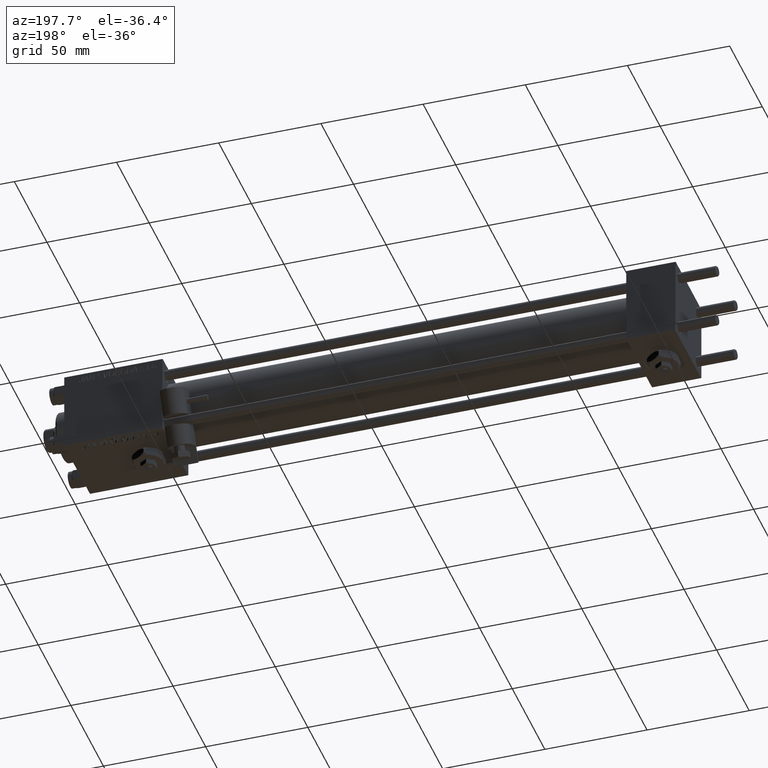
[diagram: clean part render]
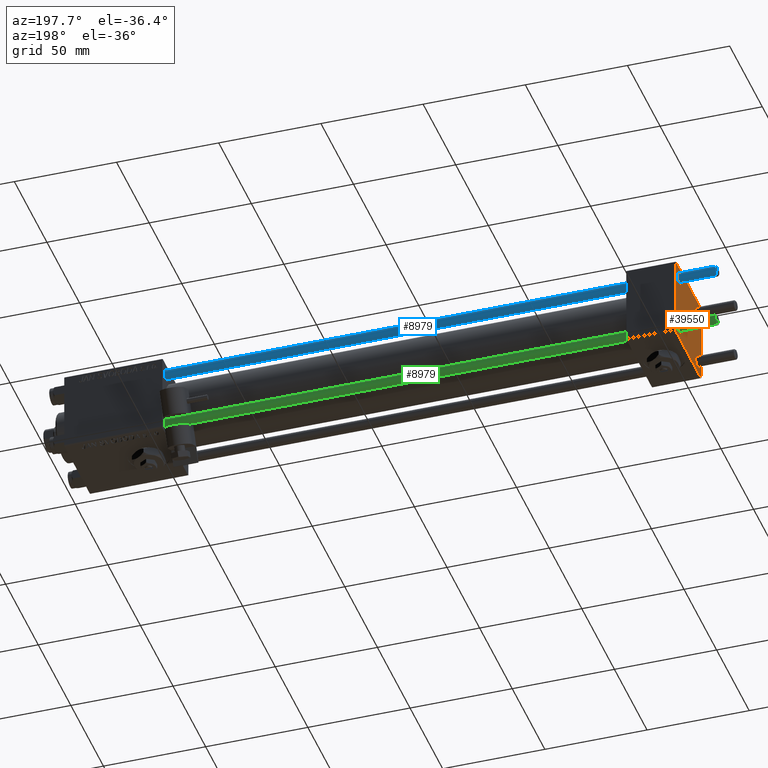
[diagram: same view with three faces highlighted in distinct colors, each labeled with its STEP entity id]
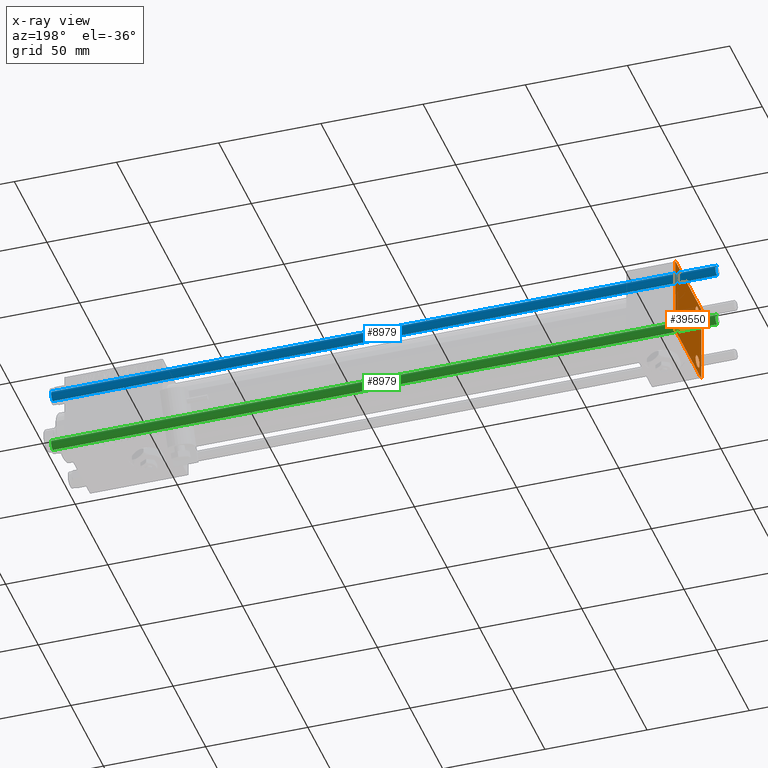
[diagram: x-ray of the same camera — body ghosted, the three highlighted faces saturated]
A machine part, auxiliary view with three faces highlighted in distinct colors.
The next image is the same camera in x-ray (body ghosted, the three faces saturated) — at least one of them is partly hidden behind the body in this view.
Their STEP definitions:

[orange] entity #39550 — the highlighted planar face has unit normal (-1, 0, 0).
#5 = VERTEX_POINT ( 'NONE', #51979 ) ;
#264 = CARTESIAN_POINT ( 'NONE',  ( 0.000000000000000000, -20.00000000000000355, 19.49999999999998224 ) ) ;
#1296 = DIRECTION ( 'NONE',  ( -0.000000000000000000, 0.000000000000000000, 1.000000000000000000 ) ) ;
#1893 = EDGE_CURVE ( 'NONE', #13429, #12551, #21373, .T. ) ;
#2311 = CARTESIAN_POINT ( 'NONE',  ( 0.000000000000000000, -14.14999999999999503, -17.15000000000000568 ) ) ;
#2686 = CARTESIAN_POINT ( 'NONE',  ( 0.000000000000000000, 14.14999999999999858, 17.15000000000000568 ) ) ;
#2732 = CIRCLE ( 'NONE', #32572, 3.000000000000000888 ) ;
#3047 = EDGE_LOOP ( 'NONE', ( #10812, #17126 ) ) ;
#4506 = FACE_BOUND ( 'NONE', #20293, .T. ) ;
#4575 = DIRECTION ( 'NONE',  ( 0.000000000000000000, 0.000000000000000000, 1.000000000000000000 ) ) ;
#5094 = DIRECTION ( 'NONE',  ( 1.000000000000000000, 0.000000000000000000, 0.000000000000000000 ) ) ;
#5096 = EDGE_CURVE ( 'NONE', #22562, #13429, #49957, .T. ) ;
#5564 = EDGE_LOOP ( 'NONE', ( #21692, #30108, #19060, #39436, #37692, #7575, #50798, #44128 ) ) ;
#6077 = CIRCLE ( 'NONE', #30835, 3.000000000000000888 ) ;
#6235 = CIRCLE ( 'NONE', #36086, 3.000000000000000888 ) ;
#6367 = VERTEX_POINT ( 'NONE', #32341 ) ;
#6432 = DIRECTION ( 'NONE',  ( 1.000000000000000000, 0.000000000000000000, 0.000000000000000000 ) ) ;
#6481 = CARTESIAN_POINT ( 'NONE',  ( 0.000000000000000000, -14.14999999999999503, -11.15000000000000391 ) ) ;
#7163 = DIRECTION ( 'NONE',  ( 1.000000000000000000, 0.000000000000000000, 0.000000000000000000 ) ) ;
#7575 = ORIENTED_EDGE ( 'NONE', *, *, #26172, .T. ) ;
#7672 = VERTEX_POINT ( 'NONE', #27441 ) ;
#7816 = CARTESIAN_POINT ( 'NONE',  ( 0.000000000000000000, 14.14999999999999858, 14.15000000000000036 ) ) ;
#7922 = CIRCLE ( 'NONE', #39510, 3.000000000000000888 ) ;
#7960 = AXIS2_PLACEMENT_3D ( 'NONE', #14940, #38983, #20764 ) ;
#8371 = CARTESIAN_POINT ( 'NONE',  ( 0.000000000000000000, 14.14999999999999858, -11.15000000000000036 ) ) ;
#8393 = CARTESIAN_POINT ( 'NONE',  ( -0.000000000000000000, 19.74999999999986855, -19.75000000000014211 ) ) ;
#8828 = CARTESIAN_POINT ( 'NONE',  ( -0.000000000000000000, 19.75000000000013500, 19.74999999999986144 ) ) ;
#8917 = AXIS2_PLACEMENT_3D ( 'NONE', #17315, #49630, #1296 ) ;
#9898 = DIRECTION ( 'NONE',  ( 0.000000000000000000, 0.000000000000000000, -1.000000000000000000 ) ) ;
#10060 = DIRECTION ( 'NONE',  ( 0.000000000000000000, -1.000000000000000000, 1.734723475976807094E-16 ) ) ;
#10812 = ORIENTED_EDGE ( 'NONE', *, *, #28127, .T. ) ;
#10887 = DIRECTION ( 'NONE',  ( 1.000000000000000000, 0.000000000000000000, 0.000000000000000000 ) ) ;
#10978 = VERTEX_POINT ( 'NONE', #45499 ) ;
#11130 = EDGE_CURVE ( 'NONE', #35879, #36719, #30025, .T. ) ;
#11830 = DIRECTION ( 'NONE',  ( 0.000000000000000000, -0.7071067811865401342, 0.7071067811865549002 ) ) ;
#12551 = VERTEX_POINT ( 'NONE', #36302 ) ;
#12848 = DIRECTION ( 'NONE',  ( 1.000000000000000000, 0.000000000000000000, 0.000000000000000000 ) ) ;
#13429 = VERTEX_POINT ( 'NONE', #23250 ) ;
#13466 = VERTEX_POINT ( 'NONE', #2686 ) ;
#13572 = FACE_BOUND ( 'NONE', #44039, .T. ) ;
#14445 = DIRECTION ( 'NONE',  ( 0.000000000000000000, 0.000000000000000000, 1.000000000000000000 ) ) ;
#14778 = CIRCLE ( 'NONE', #33541, 3.000000000000000888 ) ;
#14940 = CARTESIAN_POINT ( 'NONE',  ( 0.000000000000000000, -14.14999999999999503, -14.15000000000000391 ) ) ;
#15272 = CARTESIAN_POINT ( 'NONE',  ( 0.000000000000000000, -14.14999999999999503, 11.15000000000000213 ) ) ;
#15881 = LINE ( 'NONE', #8393, #33150 ) ;
#16088 = DIRECTION ( 'NONE',  ( 1.000000000000000000, 0.000000000000000000, 0.000000000000000000 ) ) ;
#16409 = DIRECTION ( 'NONE',  ( -0.000000000000000000, -0.7071067811865524577, -0.7071067811865426878 ) ) ;
#16539 = CIRCLE ( 'NONE', #20803, 3.000000000000000888 ) ;
#16576 = DIRECTION ( 'NONE',  ( 0.000000000000000000, -1.000000000000000000, -2.602085213965210149E-16 ) ) ;
#16956 = CARTESIAN_POINT ( 'NONE',  ( 0.000000000000000000, 19.50000000000000000, 20.00000000000000000 ) ) ;
#17126 = ORIENTED_EDGE ( 'NONE', *, *, #31697, .T. ) ;
#17220 = ORIENTED_EDGE ( 'NONE', *, *, #45179, .T. ) ;
#17315 = CARTESIAN_POINT ( 'NONE',  ( 0.000000000000000000, 0.000000000000000000, 0.000000000000000000 ) ) ;
#17634 = EDGE_CURVE ( 'NONE', #12551, #5, #15881, .T. ) ;
#17844 = EDGE_LOOP ( 'NONE', ( #38381, #38617 ) ) ;
#18065 = LINE ( 'NONE', #46635, #26816 ) ;
#18632 = CARTESIAN_POINT ( 'NONE',  ( 0.000000000000000000, -14.14999999999999503, 14.15000000000000391 ) ) ;
#19060 = ORIENTED_EDGE ( 'NONE', *, *, #38415, .T. ) ;
#19598 = AXIS2_PLACEMENT_3D ( 'NONE', #31014, #6432, #14445 ) ;
#20293 = EDGE_LOOP ( 'NONE', ( #31375, #26559 ) ) ;
#20330 = VECTOR ( 'NONE', #38200, 999.9999999999998863 ) ;
#20577 = CARTESIAN_POINT ( 'NONE',  ( 0.000000000000000000, 14.14999999999999858, 14.15000000000000036 ) ) ;
#20764 = DIRECTION ( 'NONE',  ( 0.000000000000000000, 0.000000000000000000, 1.000000000000000000 ) ) ;
#20803 = AXIS2_PLACEMENT_3D ( 'NONE', #51776, #7163, #23462 ) ;
#20967 = EDGE_CURVE ( 'NONE', #35082, #29987, #21197, .T. ) ;
#21197 = CIRCLE ( 'NONE', #19598, 3.000000000000000888 ) ;
#21371 = DIRECTION ( 'NONE',  ( 0.000000000000000000, 0.000000000000000000, 1.000000000000000000 ) ) ;
#21373 = LINE ( 'NONE', #42463, #32164 ) ;
#21692 = ORIENTED_EDGE ( 'NONE', *, *, #1893, .T. ) ;
#22562 = VERTEX_POINT ( 'NONE', #16956 ) ;
#23250 = CARTESIAN_POINT ( 'NONE',  ( 0.000000000000000000, 20.00000000000000000, 19.49999999999999289 ) ) ;
#23462 = DIRECTION ( 'NONE',  ( 0.000000000000000000, 0.000000000000000000, 1.000000000000000000 ) ) ;
#24114 = DIRECTION ( 'NONE',  ( 0.000000000000000000, 0.000000000000000000, 1.000000000000000000 ) ) ;
#25412 = CARTESIAN_POINT ( 'NONE',  ( 0.000000000000000000, -20.00000000000000000, -19.49999999999999645 ) ) ;
#25872 = FACE_OUTER_BOUND ( 'NONE', #5564, .T. ) ;
#26172 = EDGE_CURVE ( 'NONE', #35879, #31522, #35397, .T. ) ;
#26338 = VERTEX_POINT ( 'NONE', #8371 ) ;
#26559 = ORIENTED_EDGE ( 'NONE', *, *, #20967, .T. ) ;
#26816 = VECTOR ( 'NONE', #10060, 1000.000000000000000 ) ;
#27441 = CARTESIAN_POINT ( 'NONE',  ( 0.000000000000000000, -19.50000000000000711, -20.00000000000000000 ) ) ;
#27605 = CARTESIAN_POINT ( 'NONE',  ( 0.000000000000000000, -19.49999999999999289, 19.99999999999998934 ) ) ;
#28127 = EDGE_CURVE ( 'NONE', #13466, #52156, #6077, .T. ) ;
#28383 = LINE ( 'NONE', #45188, #48879 ) ;
#28408 = DIRECTION ( 'NONE',  ( -0.000000000000000000, 0.7071067811865500152, 0.7071067811865451302 ) ) ;
#29987 = VERTEX_POINT ( 'NONE', #6481 ) ;
#30025 = LINE ( 'NONE', #39086, #35903 ) ;
#30108 = ORIENTED_EDGE ( 'NONE', *, *, #17634, .T. ) ;
#30835 = AXIS2_PLACEMENT_3D ( 'NONE', #20577, #5094, #21371 ) ;
#31014 = CARTESIAN_POINT ( 'NONE',  ( 0.000000000000000000, -14.14999999999999503, -14.15000000000000391 ) ) ;
#31375 = ORIENTED_EDGE ( 'NONE', *, *, #33077, .T. ) ;
#31522 = VERTEX_POINT ( 'NONE', #27605 ) ;
#31697 = EDGE_CURVE ( 'NONE', #52156, #13466, #7922, .T. ) ;
#31737 = EDGE_CURVE ( 'NONE', #7672, #36719, #28383, .T. ) ;
#32164 = VECTOR ( 'NONE', #9898, 1000.000000000000000 ) ;
#32341 = CARTESIAN_POINT ( 'NONE',  ( 0.000000000000000000, 14.14999999999999858, -17.15000000000000213 ) ) ;
#32572 = AXIS2_PLACEMENT_3D ( 'NONE', #18632, #10887, #41949 ) ;
#32684 = CARTESIAN_POINT ( 'NONE',  ( 0.000000000000000000, 14.14999999999999858, 11.14999999999999858 ) ) ;
#33077 = EDGE_CURVE ( 'NONE', #29987, #35082, #48915, .T. ) ;
#33137 = CARTESIAN_POINT ( 'NONE',  ( 0.000000000000000000, 20.00000000000000000, 20.00000000000000000 ) ) ;
#33150 = VECTOR ( 'NONE', #16409, 1000.000000000000000 ) ;
#33541 = AXIS2_PLACEMENT_3D ( 'NONE', #45678, #12848, #4575 ) ;
#34296 = DIRECTION ( 'NONE',  ( 0.000000000000000000, 8.673617379884036705E-17, -1.000000000000000000 ) ) ;
#34400 = ORIENTED_EDGE ( 'NONE', *, *, #45290, .T. ) ;
#35082 = VERTEX_POINT ( 'NONE', #2311 ) ;
#35397 = LINE ( 'NONE', #40435, #47776 ) ;
#35879 = VERTEX_POINT ( 'NONE', #264 ) ;
#35903 = VECTOR ( 'NONE', #34296, 1000.000000000000000 ) ;
#36086 = AXIS2_PLACEMENT_3D ( 'NONE', #47464, #43711, #45936 ) ;
#36302 = CARTESIAN_POINT ( 'NONE',  ( 0.000000000000000000, 20.00000000000000000, -19.50000000000002132 ) ) ;
#36719 = VERTEX_POINT ( 'NONE', #25412 ) ;
#37692 = ORIENTED_EDGE ( 'NONE', *, *, #11130, .F. ) ;
#38133 = EDGE_CURVE ( 'NONE', #26338, #6367, #16539, .T. ) ;
#38200 = DIRECTION ( 'NONE',  ( 0.000000000000000000, 0.7071067811865425767, -0.7071067811865525687 ) ) ;
#38381 = ORIENTED_EDGE ( 'NONE', *, *, #38133, .T. ) ;
#38415 = EDGE_CURVE ( 'NONE', #5, #7672, #18065, .T. ) ;
#38617 = ORIENTED_EDGE ( 'NONE', *, *, #45251, .T. ) ;
#38983 = DIRECTION ( 'NONE',  ( 1.000000000000000000, 0.000000000000000000, 0.000000000000000000 ) ) ;
#39086 = CARTESIAN_POINT ( 'NONE',  ( 0.000000000000000000, -20.00000000000000355, 19.99999999999998934 ) ) ;
#39436 = ORIENTED_EDGE ( 'NONE', *, *, #31737, .T. ) ;
#39510 = AXIS2_PLACEMENT_3D ( 'NONE', #7816, #16088, #24114 ) ;
#39550 = ADVANCED_FACE ( 'NONE', ( #13572, #4506, #50428, #45874, #25872 ), #49903, .T. ) ;
#40435 = CARTESIAN_POINT ( 'NONE',  ( -0.000000000000000000, -19.74999999999992539, 19.75000000000006395 ) ) ;
#41949 = DIRECTION ( 'NONE',  ( 0.000000000000000000, 0.000000000000000000, 1.000000000000000000 ) ) ;
#42463 = CARTESIAN_POINT ( 'NONE',  ( 0.000000000000000000, 20.00000000000000000, 20.00000000000000000 ) ) ;
#43711 = DIRECTION ( 'NONE',  ( 1.000000000000000000, 0.000000000000000000, 0.000000000000000000 ) ) ;
#44039 = EDGE_LOOP ( 'NONE', ( #17220, #34400 ) ) ;
#44128 = ORIENTED_EDGE ( 'NONE', *, *, #5096, .T. ) ;
#45179 = EDGE_CURVE ( 'NONE', #10978, #52309, #14778, .T. ) ;
#45188 = CARTESIAN_POINT ( 'NONE',  ( 0.000000000000000000, -19.75000000000020961, -19.74999999999979394 ) ) ;
#45251 = EDGE_CURVE ( 'NONE', #6367, #26338, #6235, .T. ) ;
#45290 = EDGE_CURVE ( 'NONE', #52309, #10978, #2732, .T. ) ;
#45441 = VECTOR ( 'NONE', #16576, 1000.000000000000000 ) ;
#45499 = CARTESIAN_POINT ( 'NONE',  ( 0.000000000000000000, -14.14999999999999503, 17.15000000000000568 ) ) ;
#45678 = CARTESIAN_POINT ( 'NONE',  ( 0.000000000000000000, -14.14999999999999503, 14.15000000000000391 ) ) ;
#45874 = FACE_BOUND ( 'NONE', #3047, .T. ) ;
#45936 = DIRECTION ( 'NONE',  ( 0.000000000000000000, 0.000000000000000000, 1.000000000000000000 ) ) ;
#46635 = CARTESIAN_POINT ( 'NONE',  ( 0.000000000000000000, 20.00000000000000000, -20.00000000000000711 ) ) ;
#47464 = CARTESIAN_POINT ( 'NONE',  ( 0.000000000000000000, 14.14999999999999858, -14.15000000000000036 ) ) ;
#47776 = VECTOR ( 'NONE', #28408, 1000.000000000000114 ) ;
#48879 = VECTOR ( 'NONE', #11830, 1000.000000000000000 ) ;
#48915 = CIRCLE ( 'NONE', #7960, 3.000000000000000888 ) ;
#48928 = EDGE_CURVE ( 'NONE', #22562, #31522, #52644, .T. ) ;
#49630 = DIRECTION ( 'NONE',  ( -1.000000000000000000, 0.000000000000000000, -0.000000000000000000 ) ) ;
#49903 = PLANE ( 'NONE',  #8917 ) ;
#49957 = LINE ( 'NONE', #8828, #20330 ) ;
#50428 = FACE_BOUND ( 'NONE', #17844, .T. ) ;
#50798 = ORIENTED_EDGE ( 'NONE', *, *, #48928, .F. ) ;
#51776 = CARTESIAN_POINT ( 'NONE',  ( 0.000000000000000000, 14.14999999999999858, -14.15000000000000036 ) ) ;
#51979 = CARTESIAN_POINT ( 'NONE',  ( 0.000000000000000000, 19.50000000000000711, -20.00000000000000711 ) ) ;
#52156 = VERTEX_POINT ( 'NONE', #32684 ) ;
#52309 = VERTEX_POINT ( 'NONE', #15272 ) ;
#52644 = LINE ( 'NONE', #33137, #45441 ) ;

[blue] entity #8979 — the highlighted cylindrical surface (edge-blend (fillet) strip) has radius 2.5 mm, axis along (-1, -0, -0).
#1852 = EDGE_CURVE ( 'NONE', #48198, #29187, #5097, .T. ) ;
#2416 = DIRECTION ( 'NONE',  ( -0.000000000000000000, -0.000000000000000000, 1.000000000000000000 ) ) ;
#4828 = EDGE_LOOP ( 'NONE', ( #16886, #25578, #29317, #5146 ) ) ;
#5097 = LINE ( 'NONE', #37940, #44083 ) ;
#5146 = ORIENTED_EDGE ( 'NONE', *, *, #1852, .F. ) ;
#5625 = DIRECTION ( 'NONE',  ( -0.000000000000000000, -0.000000000000000000, -1.000000000000000000 ) ) ;
#6379 = LINE ( 'NONE', #34965, #42018 ) ;
#7096 = CIRCLE ( 'NONE', #8803, 2.500000000000000000 ) ;
#8803 = AXIS2_PLACEMENT_3D ( 'NONE', #31004, #2416, #51296 ) ;
#8979 = ADVANCED_FACE ( 'NONE', ( #17707 ), #16911, .T. ) ;
#9107 = CARTESIAN_POINT ( 'NONE',  ( 2.500000000000000000, 3.061616997868383141E-16, 325.5000000000000000 ) ) ;
#16886 = ORIENTED_EDGE ( 'NONE', *, *, #50492, .T. ) ;
#16911 = CYLINDRICAL_SURFACE ( 'NONE', #39265, 2.500000000000000000 ) ;
#17395 = CIRCLE ( 'NONE', #31062, 2.500000000000000000 ) ;
#17707 = FACE_OUTER_BOUND ( 'NONE', #4828, .T. ) ;
#19733 = CARTESIAN_POINT ( 'NONE',  ( -2.500000000000000000, 0.000000000000000000, 0.4999999999999449329 ) ) ;
#22944 = DIRECTION ( 'NONE',  ( -0.000000000000000000, -0.000000000000000000, -1.000000000000000000 ) ) ;
#23891 = CARTESIAN_POINT ( 'NONE',  ( 2.500000000000000000, 3.061616997868383141E-16, 0.4999999999999449329 ) ) ;
#25578 = ORIENTED_EDGE ( 'NONE', *, *, #31060, .T. ) ;
#28194 = CARTESIAN_POINT ( 'NONE',  ( -2.500000000000000000, 0.000000000000000000, 325.5000000000000000 ) ) ;
#29187 = VERTEX_POINT ( 'NONE', #19733 ) ;
#29198 = DIRECTION ( 'NONE',  ( -0.000000000000000000, -0.000000000000000000, -1.000000000000000000 ) ) ;
#29317 = ORIENTED_EDGE ( 'NONE', *, *, #36873, .T. ) ;
#29912 = DIRECTION ( 'NONE',  ( 1.000000000000000000, 0.000000000000000000, 0.000000000000000000 ) ) ;
#30638 = VERTEX_POINT ( 'NONE', #23891 ) ;
#31004 = CARTESIAN_POINT ( 'NONE',  ( 0.000000000000000000, 0.000000000000000000, 0.4999999999999449329 ) ) ;
#31060 = EDGE_CURVE ( 'NONE', #45182, #30638, #6379, .T. ) ;
#31062 = AXIS2_PLACEMENT_3D ( 'NONE', #49412, #37659, #29912 ) ;
#34965 = CARTESIAN_POINT ( 'NONE',  ( 2.500000000000000000, 3.061616997868383141E-16, 326.0000000000000000 ) ) ;
#36873 = EDGE_CURVE ( 'NONE', #30638, #29187, #7096, .T. ) ;
#37659 = DIRECTION ( 'NONE',  ( 0.000000000000000000, 0.000000000000000000, -1.000000000000000000 ) ) ;
#37940 = CARTESIAN_POINT ( 'NONE',  ( -2.500000000000000000, 0.000000000000000000, 326.0000000000000000 ) ) ;
#39265 = AXIS2_PLACEMENT_3D ( 'NONE', #41223, #29198, #49769 ) ;
#41223 = CARTESIAN_POINT ( 'NONE',  ( 0.000000000000000000, 0.000000000000000000, 326.0000000000000000 ) ) ;
#42018 = VECTOR ( 'NONE', #22944, 1000.000000000000000 ) ;
#44083 = VECTOR ( 'NONE', #5625, 1000.000000000000000 ) ;
#45182 = VERTEX_POINT ( 'NONE', #9107 ) ;
#48198 = VERTEX_POINT ( 'NONE', #28194 ) ;
#49412 = CARTESIAN_POINT ( 'NONE',  ( 0.000000000000000000, 0.000000000000000000, 325.5000000000000000 ) ) ;
#49769 = DIRECTION ( 'NONE',  ( -1.000000000000000000, 0.000000000000000000, 0.000000000000000000 ) ) ;
#50492 = EDGE_CURVE ( 'NONE', #48198, #45182, #17395, .T. ) ;
#51296 = DIRECTION ( 'NONE',  ( 1.000000000000000000, 0.000000000000000000, 0.000000000000000000 ) ) ;

[green] entity #8979 — the highlighted cylindrical surface (edge-blend (fillet) strip) has radius 2.5 mm, axis along (1, 0, -0).
#1852 = EDGE_CURVE ( 'NONE', #48198, #29187, #5097, .T. ) ;
#2416 = DIRECTION ( 'NONE',  ( -0.000000000000000000, -0.000000000000000000, 1.000000000000000000 ) ) ;
#4828 = EDGE_LOOP ( 'NONE', ( #16886, #25578, #29317, #5146 ) ) ;
#5097 = LINE ( 'NONE', #37940, #44083 ) ;
#5146 = ORIENTED_EDGE ( 'NONE', *, *, #1852, .F. ) ;
#5625 = DIRECTION ( 'NONE',  ( -0.000000000000000000, -0.000000000000000000, -1.000000000000000000 ) ) ;
#6379 = LINE ( 'NONE', #34965, #42018 ) ;
#7096 = CIRCLE ( 'NONE', #8803, 2.500000000000000000 ) ;
#8803 = AXIS2_PLACEMENT_3D ( 'NONE', #31004, #2416, #51296 ) ;
#8979 = ADVANCED_FACE ( 'NONE', ( #17707 ), #16911, .T. ) ;
#9107 = CARTESIAN_POINT ( 'NONE',  ( 2.500000000000000000, 3.061616997868383141E-16, 325.5000000000000000 ) ) ;
#16886 = ORIENTED_EDGE ( 'NONE', *, *, #50492, .T. ) ;
#16911 = CYLINDRICAL_SURFACE ( 'NONE', #39265, 2.500000000000000000 ) ;
#17395 = CIRCLE ( 'NONE', #31062, 2.500000000000000000 ) ;
#17707 = FACE_OUTER_BOUND ( 'NONE', #4828, .T. ) ;
#19733 = CARTESIAN_POINT ( 'NONE',  ( -2.500000000000000000, 0.000000000000000000, 0.4999999999999449329 ) ) ;
#22944 = DIRECTION ( 'NONE',  ( -0.000000000000000000, -0.000000000000000000, -1.000000000000000000 ) ) ;
#23891 = CARTESIAN_POINT ( 'NONE',  ( 2.500000000000000000, 3.061616997868383141E-16, 0.4999999999999449329 ) ) ;
#25578 = ORIENTED_EDGE ( 'NONE', *, *, #31060, .T. ) ;
#28194 = CARTESIAN_POINT ( 'NONE',  ( -2.500000000000000000, 0.000000000000000000, 325.5000000000000000 ) ) ;
#29187 = VERTEX_POINT ( 'NONE', #19733 ) ;
#29198 = DIRECTION ( 'NONE',  ( -0.000000000000000000, -0.000000000000000000, -1.000000000000000000 ) ) ;
#29317 = ORIENTED_EDGE ( 'NONE', *, *, #36873, .T. ) ;
#29912 = DIRECTION ( 'NONE',  ( 1.000000000000000000, 0.000000000000000000, 0.000000000000000000 ) ) ;
#30638 = VERTEX_POINT ( 'NONE', #23891 ) ;
#31004 = CARTESIAN_POINT ( 'NONE',  ( 0.000000000000000000, 0.000000000000000000, 0.4999999999999449329 ) ) ;
#31060 = EDGE_CURVE ( 'NONE', #45182, #30638, #6379, .T. ) ;
#31062 = AXIS2_PLACEMENT_3D ( 'NONE', #49412, #37659, #29912 ) ;
#34965 = CARTESIAN_POINT ( 'NONE',  ( 2.500000000000000000, 3.061616997868383141E-16, 326.0000000000000000 ) ) ;
#36873 = EDGE_CURVE ( 'NONE', #30638, #29187, #7096, .T. ) ;
#37659 = DIRECTION ( 'NONE',  ( 0.000000000000000000, 0.000000000000000000, -1.000000000000000000 ) ) ;
#37940 = CARTESIAN_POINT ( 'NONE',  ( -2.500000000000000000, 0.000000000000000000, 326.0000000000000000 ) ) ;
#39265 = AXIS2_PLACEMENT_3D ( 'NONE', #41223, #29198, #49769 ) ;
#41223 = CARTESIAN_POINT ( 'NONE',  ( 0.000000000000000000, 0.000000000000000000, 326.0000000000000000 ) ) ;
#42018 = VECTOR ( 'NONE', #22944, 1000.000000000000000 ) ;
#44083 = VECTOR ( 'NONE', #5625, 1000.000000000000000 ) ;
#45182 = VERTEX_POINT ( 'NONE', #9107 ) ;
#48198 = VERTEX_POINT ( 'NONE', #28194 ) ;
#49412 = CARTESIAN_POINT ( 'NONE',  ( 0.000000000000000000, 0.000000000000000000, 325.5000000000000000 ) ) ;
#49769 = DIRECTION ( 'NONE',  ( -1.000000000000000000, 0.000000000000000000, 0.000000000000000000 ) ) ;
#50492 = EDGE_CURVE ( 'NONE', #48198, #45182, #17395, .T. ) ;
#51296 = DIRECTION ( 'NONE',  ( 1.000000000000000000, 0.000000000000000000, 0.000000000000000000 ) ) ;